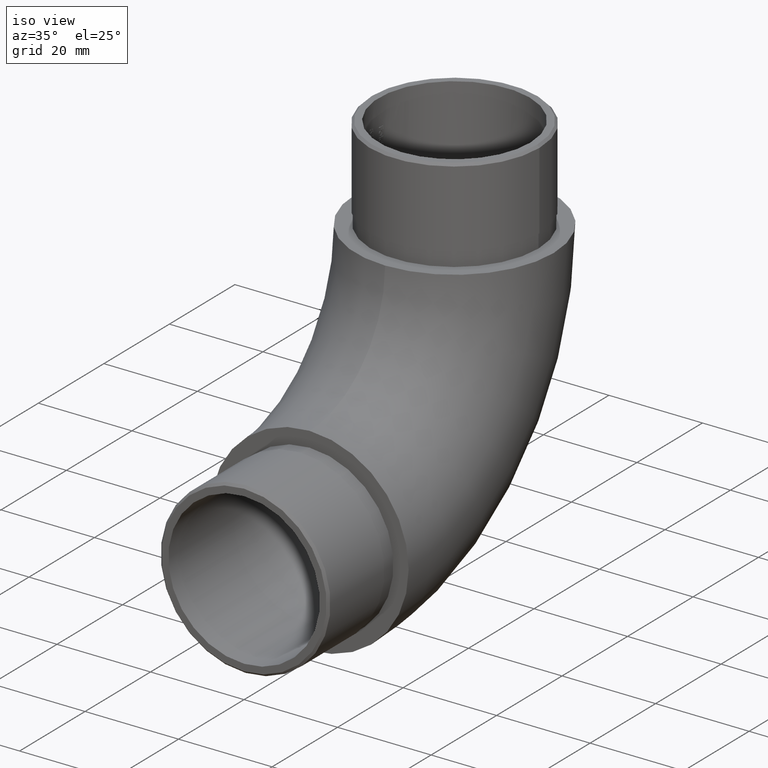
[diagram: clean part render]
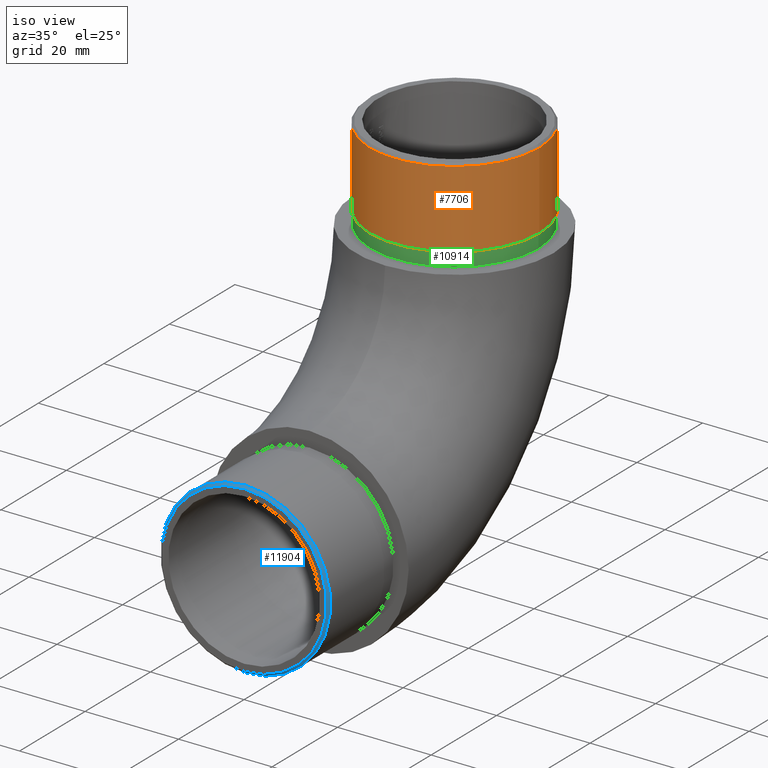
[diagram: same view with three faces highlighted in distinct colors, each labeled with its STEP entity id]
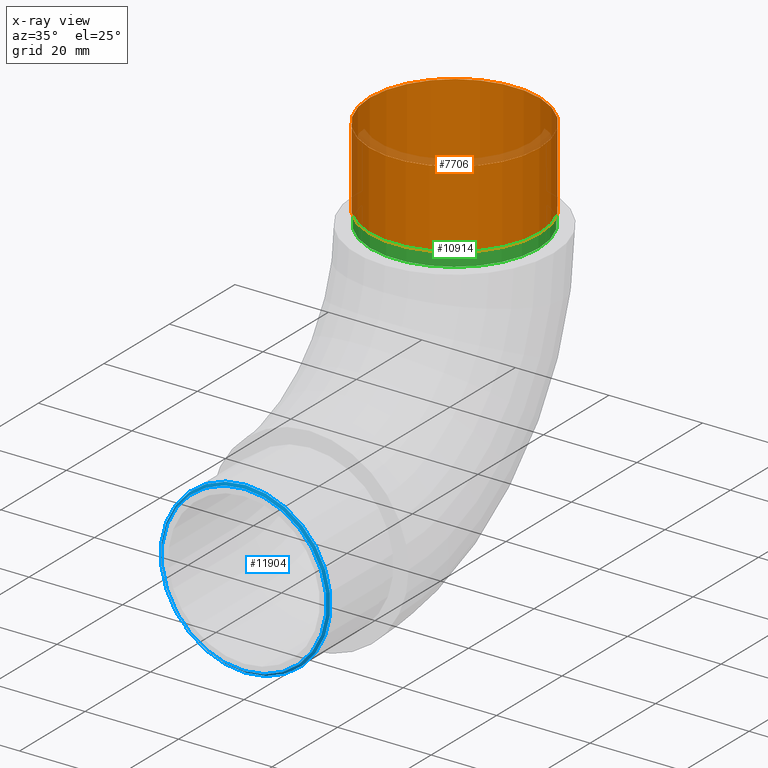
[diagram: x-ray of the same camera — body ghosted, the three highlighted faces saturated]
A machine part, iso view with three faces highlighted in distinct colors.
The next image is the same camera in x-ray (body ghosted, the three faces saturated) — at least one of them is partly hidden behind the body in this view.
Their STEP definitions:

[orange] entity #7706 — the highlighted cylindrical surface (bore or boss wall) has radius 18.15 mm, axis along (-0, -0, -1).
#1226 = DIRECTION ( 'NONE',  ( 1.000000000000000000, 0.0000000000000000000, 0.0000000000000000000 ) ) ;
#2142 = CARTESIAN_POINT ( 'NONE',  ( 0.0000000000000000000, 44.29999999999999000, 85.50000000000000000 ) ) ;
#2311 = FACE_OUTER_BOUND ( 'NONE', #2353, .T. ) ;
#2353 = EDGE_LOOP ( 'NONE', ( #7123 ) ) ;
#3595 = CYLINDRICAL_SURFACE ( 'NONE', #4449, 18.14999999999999900 ) ;
#3673 = CIRCLE ( 'NONE', #9199, 18.14999999999999900 ) ;
#4096 = CARTESIAN_POINT ( 'NONE',  ( 0.0000000000000000000, 44.29999999999999000, 85.00000000000001400 ) ) ;
#4195 = EDGE_LOOP ( 'NONE', ( #12250 ) ) ;
#4449 = AXIS2_PLACEMENT_3D ( 'NONE', #2142, #12557, #5358 ) ;
#4639 = EDGE_CURVE ( 'NONE', #12490, #12490, #3673, .T. ) ;
#4668 = CARTESIAN_POINT ( 'NONE',  ( 18.14999999999999900, 44.29999999999999000, 85.00000000000001400 ) ) ;
#5358 = DIRECTION ( 'NONE',  ( -1.000000000000000000, 0.0000000000000000000, 0.0000000000000000000 ) ) ;
#7123 = ORIENTED_EDGE ( 'NONE', *, *, #4639, .T. ) ;
#7219 = DIRECTION ( 'NONE',  ( 0.0000000000000000000, 0.0000000000000000000, 1.000000000000000000 ) ) ;
#7267 = CARTESIAN_POINT ( 'NONE',  ( 0.0000000000000000000, 44.29999999999999000, 68.50000000000000000 ) ) ;
#7706 = ADVANCED_FACE ( 'NONE', ( #2311, #12857 ), #3595, .T. ) ;
#7964 = AXIS2_PLACEMENT_3D ( 'NONE', #7267, #7219, #13256 ) ;
#9199 = AXIS2_PLACEMENT_3D ( 'NONE', #4096, #10335, #1226 ) ;
#9462 = EDGE_CURVE ( 'NONE', #10064, #10064, #11731, .T. ) ;
#9780 = CARTESIAN_POINT ( 'NONE',  ( 18.14999999999999900, 44.29999999999999000, 68.50000000000000000 ) ) ;
#10064 = VERTEX_POINT ( 'NONE', #9780 ) ;
#10335 = DIRECTION ( 'NONE',  ( 0.0000000000000000000, 0.0000000000000000000, -1.000000000000000000 ) ) ;
#11731 = CIRCLE ( 'NONE', #7964, 18.14999999999999900 ) ;
#12250 = ORIENTED_EDGE ( 'NONE', *, *, #9462, .T. ) ;
#12490 = VERTEX_POINT ( 'NONE', #4668 ) ;
#12557 = DIRECTION ( 'NONE',  ( -0.0000000000000000000, -0.0000000000000000000, -1.000000000000000000 ) ) ;
#12857 = FACE_OUTER_BOUND ( 'NONE', #4195, .T. ) ;
#13256 = DIRECTION ( 'NONE',  ( 1.000000000000000000, 0.0000000000000000000, 0.0000000000000000000 ) ) ;

[blue] entity #11904 — the highlighted conical surface has half-angle 45 deg.
#330 = VERTEX_POINT ( 'NONE', #10777 ) ;
#399 = EDGE_CURVE ( 'NONE', #330, #330, #9454, .T. ) ;
#591 = CARTESIAN_POINT ( 'NONE',  ( 0.0000000000000000000, -20.00000000000000000, 3.549999999999969600 ) ) ;
#1146 = ORIENTED_EDGE ( 'NONE', *, *, #2043, .F. ) ;
#1934 = DIRECTION ( 'NONE',  ( 0.0000000000000000000, -1.000000000000000000, 0.0000000000000000000 ) ) ;
#2043 = EDGE_CURVE ( 'NONE', #8343, #8343, #6558, .T. ) ;
#2436 = AXIS2_PLACEMENT_3D ( 'NONE', #12772, #12728, #8712 ) ;
#4004 = ORIENTED_EDGE ( 'NONE', *, *, #399, .F. ) ;
#4525 = CONICAL_SURFACE ( 'NONE', #6762, 17.65000000000003400, 0.7853981633974482800 ) ;
#5043 = EDGE_LOOP ( 'NONE', ( #4004 ) ) ;
#5996 = DIRECTION ( 'NONE',  ( 0.0000000000000000000, 0.0000000000000000000, -1.000000000000000000 ) ) ;
#6085 = CARTESIAN_POINT ( 'NONE',  ( 0.0000000000000000000, -20.00000000000000000, 21.20000000000000300 ) ) ;
#6558 = CIRCLE ( 'NONE', #8944, 17.65000000000003400 ) ;
#6762 = AXIS2_PLACEMENT_3D ( 'NONE', #7242, #9243, #8316 ) ;
#7242 = CARTESIAN_POINT ( 'NONE',  ( 0.0000000000000000000, -20.00000000000000000, 21.20000000000000300 ) ) ;
#7569 = FACE_OUTER_BOUND ( 'NONE', #5043, .T. ) ;
#8316 = DIRECTION ( 'NONE',  ( 0.0000000000000000000, 0.0000000000000000000, 1.000000000000000000 ) ) ;
#8343 = VERTEX_POINT ( 'NONE', #591 ) ;
#8712 = DIRECTION ( 'NONE',  ( 0.0000000000000000000, 0.0000000000000000000, -1.000000000000000000 ) ) ;
#8944 = AXIS2_PLACEMENT_3D ( 'NONE', #6085, #1934, #5996 ) ;
#9243 = DIRECTION ( 'NONE',  ( 0.0000000000000000000, 1.000000000000000000, 0.0000000000000000000 ) ) ;
#9305 = EDGE_LOOP ( 'NONE', ( #1146 ) ) ;
#9454 = CIRCLE ( 'NONE', #2436, 18.15000000000000200 ) ;
#10724 = FACE_BOUND ( 'NONE', #9305, .T. ) ;
#10777 = CARTESIAN_POINT ( 'NONE',  ( 0.0000000000000000000, -19.50000000000003200, 3.050000000000000700 ) ) ;
#11904 = ADVANCED_FACE ( 'NONE', ( #7569, #10724 ), #4525, .T. ) ;
#12728 = DIRECTION ( 'NONE',  ( 0.0000000000000000000, 1.000000000000000000, 0.0000000000000000000 ) ) ;
#12772 = CARTESIAN_POINT ( 'NONE',  ( 0.0000000000000000000, -19.50000000000003200, 21.20000000000000300 ) ) ;

[green] entity #10914 — the highlighted cylindrical surface (bore or boss wall) has radius 17.95 mm, axis along (-0, -0, -1).
#1427 = CIRCLE ( 'NONE', #4318, 17.94999999999999900 ) ;
#1961 = EDGE_CURVE ( 'NONE', #2439, #2439, #1427, .T. ) ;
#1979 = DIRECTION ( 'NONE',  ( 0.0000000000000000000, 0.0000000000000000000, 1.000000000000000000 ) ) ;
#2027 = DIRECTION ( 'NONE',  ( 1.000000000000000000, 0.0000000000000000000, 0.0000000000000000000 ) ) ;
#2248 = CIRCLE ( 'NONE', #3376, 17.94999999999999900 ) ;
#2439 = VERTEX_POINT ( 'NONE', #3736 ) ;
#3194 = DIRECTION ( 'NONE',  ( 1.000000000000000000, 0.0000000000000000000, 0.0000000000000000000 ) ) ;
#3337 = AXIS2_PLACEMENT_3D ( 'NONE', #12467, #6342, #10490 ) ;
#3376 = AXIS2_PLACEMENT_3D ( 'NONE', #9413, #6191, #3194 ) ;
#3443 = EDGE_CURVE ( 'NONE', #8520, #8520, #2248, .T. ) ;
#3507 = CARTESIAN_POINT ( 'NONE',  ( 17.94999999999999900, 44.29999999999999000, 68.50000000000000000 ) ) ;
#3736 = CARTESIAN_POINT ( 'NONE',  ( 17.94999999999999900, 44.29999999999999000, 65.50000000000000000 ) ) ;
#4180 = ORIENTED_EDGE ( 'NONE', *, *, #3443, .F. ) ;
#4318 = AXIS2_PLACEMENT_3D ( 'NONE', #11214, #1979, #2027 ) ;
#6191 = DIRECTION ( 'NONE',  ( 0.0000000000000000000, 0.0000000000000000000, 1.000000000000000000 ) ) ;
#6342 = DIRECTION ( 'NONE',  ( -0.0000000000000000000, -0.0000000000000000000, -1.000000000000000000 ) ) ;
#6763 = FACE_OUTER_BOUND ( 'NONE', #8179, .T. ) ;
#7891 = CYLINDRICAL_SURFACE ( 'NONE', #3337, 17.94999999999999900 ) ;
#7932 = ORIENTED_EDGE ( 'NONE', *, *, #1961, .T. ) ;
#8179 = EDGE_LOOP ( 'NONE', ( #4180 ) ) ;
#8520 = VERTEX_POINT ( 'NONE', #3507 ) ;
#8773 = EDGE_LOOP ( 'NONE', ( #7932 ) ) ;
#8859 = FACE_OUTER_BOUND ( 'NONE', #8773, .T. ) ;
#9413 = CARTESIAN_POINT ( 'NONE',  ( 0.0000000000000000000, 44.29999999999999000, 68.50000000000000000 ) ) ;
#10490 = DIRECTION ( 'NONE',  ( -1.000000000000000000, 0.0000000000000000000, 0.0000000000000000000 ) ) ;
#10914 = ADVANCED_FACE ( 'NONE', ( #6763, #8859 ), #7891, .T. ) ;
#11214 = CARTESIAN_POINT ( 'NONE',  ( 0.0000000000000000000, 44.29999999999999000, 65.50000000000000000 ) ) ;
#12467 = CARTESIAN_POINT ( 'NONE',  ( 0.0000000000000000000, 44.29999999999999000, 68.50000000000000000 ) ) ;